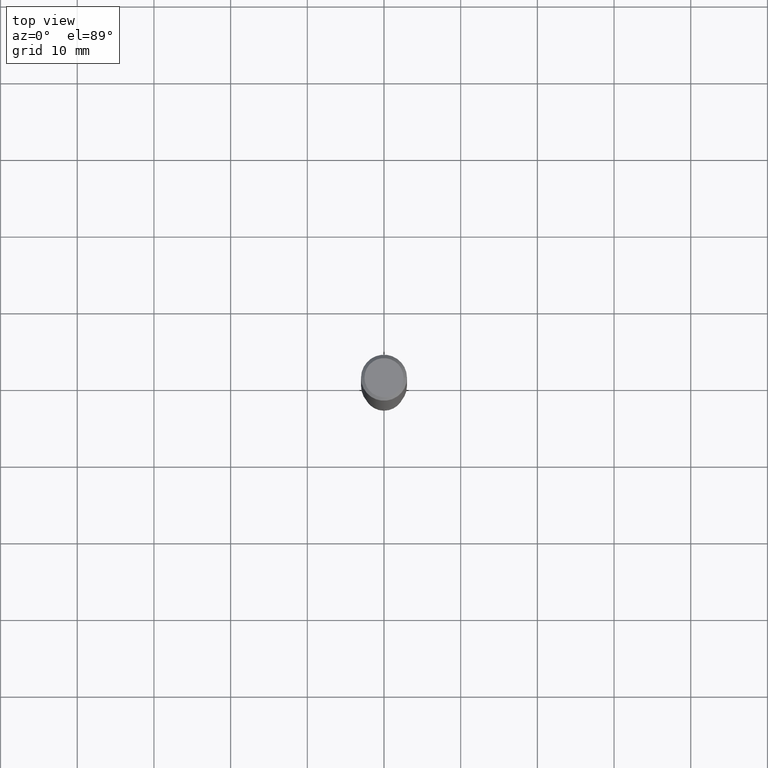
[diagram: clean part render]
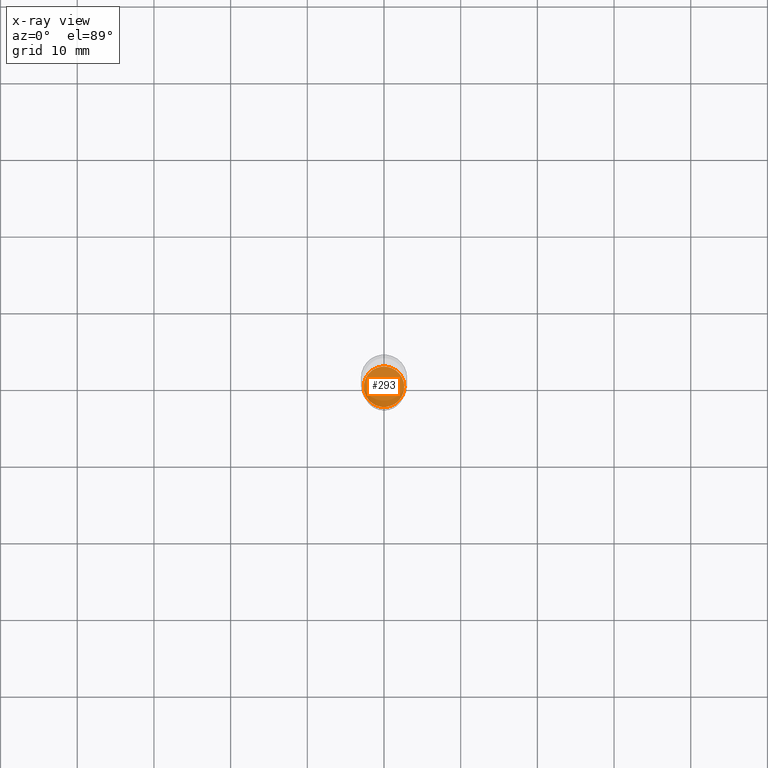
[diagram: x-ray — body ghosted, one internal face saturated and labeled with its STEP entity id]
A machine part, top view, then the same camera in x-ray: the body is ghosted and one INTERNAL B-rep face — a face not visible from any outside direction — is saturated and labeled: STEP entity #293.
In plain terms, the highlighted planar face has unit normal (-0, 0, 1).
Its self-contained STEP definition (entity closure, byte-faithful):
#60 = FACE_OUTER_BOUND ( 'NONE', #257, .T. ) ;
#98 = CIRCLE ( 'NONE', #209, 0.1039999999999999813 ) ;
#120 = DIRECTION ( 'NONE',  ( 1.000000000000000000, -6.982962677686258822E-15, 0.000000000000000000 ) ) ;
#130 = PLANE ( 'NONE',  #134 ) ;
#134 = AXIS2_PLACEMENT_3D ( 'NONE', #413, #202, #309 ) ;
#153 = CIRCLE ( 'NONE', #219, 0.1039999999999999813 ) ;
#185 = EDGE_CURVE ( 'NONE', #351, #414, #153, .T. ) ;
#202 = DIRECTION ( 'NONE',  ( -2.438088387897960049E-29, 3.491481338843145188E-15, 1.000000000000000000 ) ) ;
#204 = CARTESIAN_POINT ( 'NONE',  ( -0.1039999999999999813, -8.741947940201134645E-15, -2.716199999999999726 ) ) ;
#209 = AXIS2_PLACEMENT_3D ( 'NONE', #240, #382, #237 ) ;
#219 = AXIS2_PLACEMENT_3D ( 'NONE', #439, #443, #120 ) ;
#237 = DIRECTION ( 'NONE',  ( 1.000000000000000000, -6.982962677686258822E-15, 0.000000000000000000 ) ) ;
#240 = CARTESIAN_POINT ( 'NONE',  ( 6.642382371360067283E-29, -9.483561612565751485E-15, -2.716199999999999726 ) ) ;
#257 = EDGE_LOOP ( 'NONE', ( #400, #468 ) ) ;
#293 = ADVANCED_FACE ( 'NONE', ( #60 ), #130, .F. ) ;
#309 = DIRECTION ( 'NONE',  ( 1.000000000000000000, -6.982962677686265922E-15, 4.876176775795935793E-29 ) ) ;
#313 = EDGE_CURVE ( 'NONE', #414, #351, #98, .T. ) ;
#348 = CARTESIAN_POINT ( 'NONE',  ( 0.1039999999999999813, -1.020978973104512221E-14, -2.716199999999999726 ) ) ;
#351 = VERTEX_POINT ( 'NONE', #348 ) ;
#382 = DIRECTION ( 'NONE',  ( -2.445468806185136597E-29, 3.491481338843145583E-15, 1.000000000000000000 ) ) ;
#400 = ORIENTED_EDGE ( 'NONE', *, *, #185, .F. ) ;
#413 = CARTESIAN_POINT ( 'NONE',  ( 6.642382371360067283E-29, -9.483561612565751485E-15, -2.716199999999999726 ) ) ;
#414 = VERTEX_POINT ( 'NONE', #204 ) ;
#439 = CARTESIAN_POINT ( 'NONE',  ( 6.642382371360067283E-29, -9.483561612565751485E-15, -2.716199999999999726 ) ) ;
#443 = DIRECTION ( 'NONE',  ( -2.445468806185136597E-29, 3.491481338843145583E-15, 1.000000000000000000 ) ) ;
#468 = ORIENTED_EDGE ( 'NONE', *, *, #313, .F. ) ;